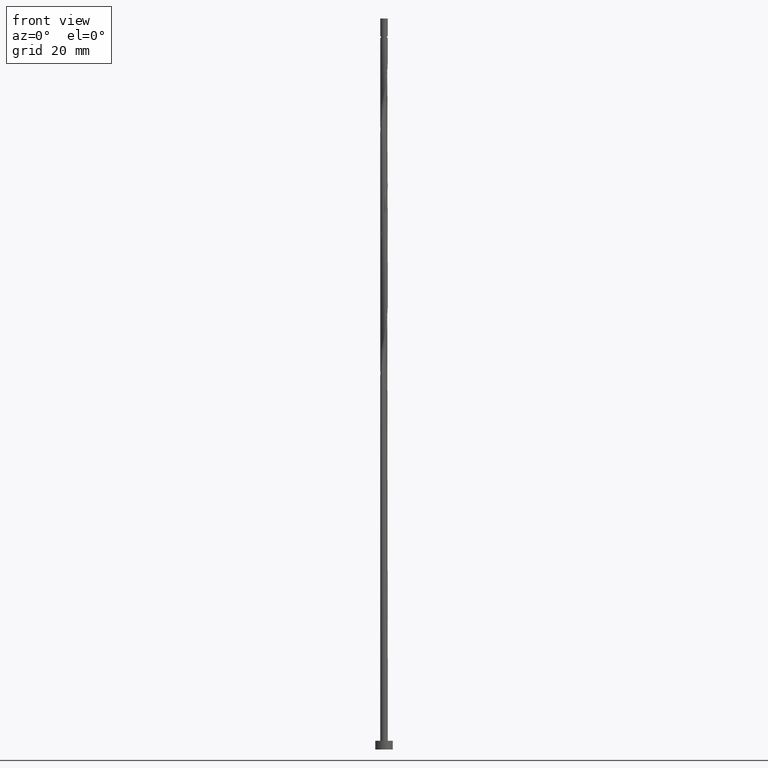
[diagram: clean part render]
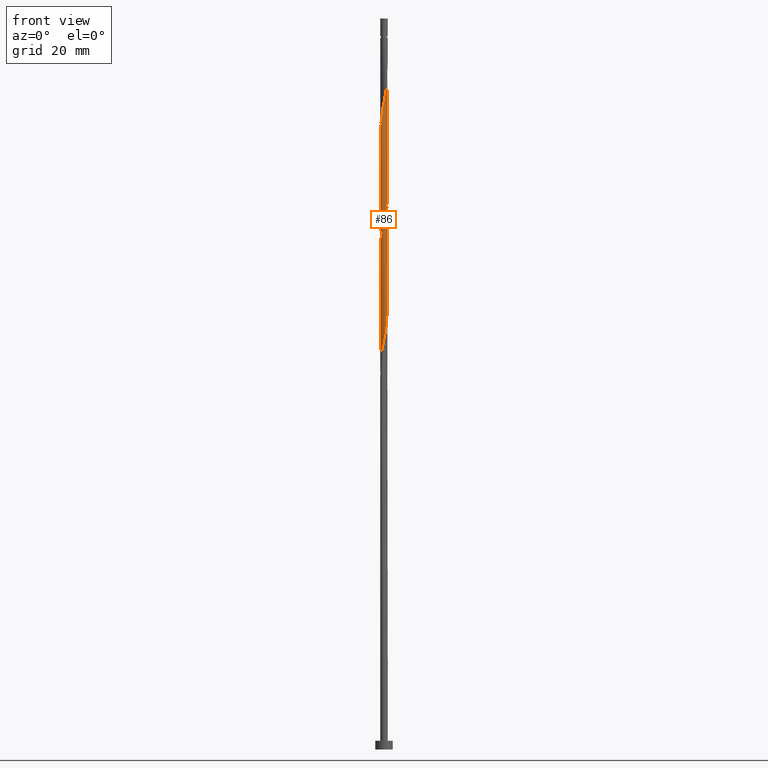
[diagram: same view with one face highlighted and labeled with its STEP entity id]
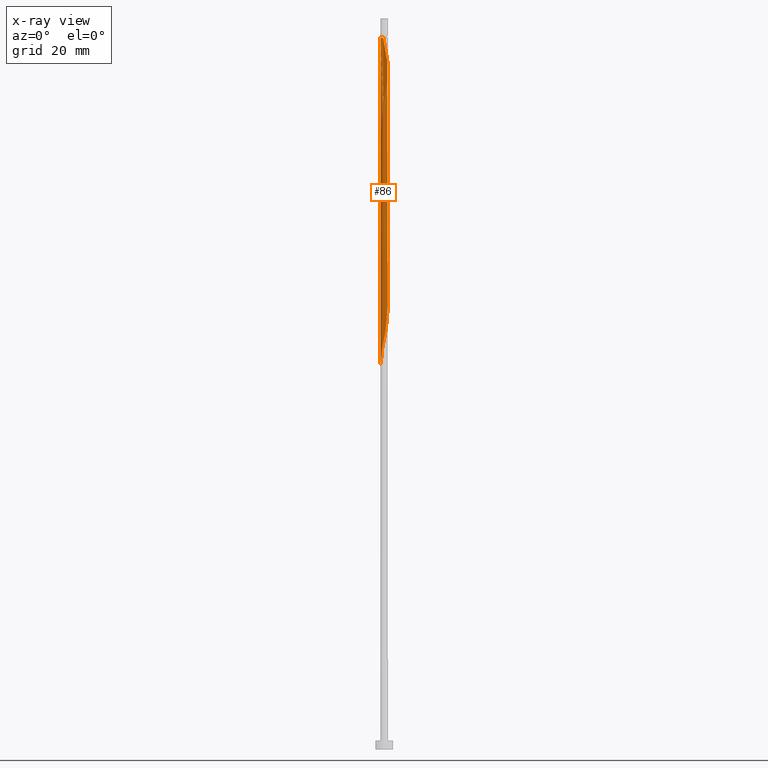
[diagram: x-ray of the same camera — body ghosted, the highlighted face saturated]
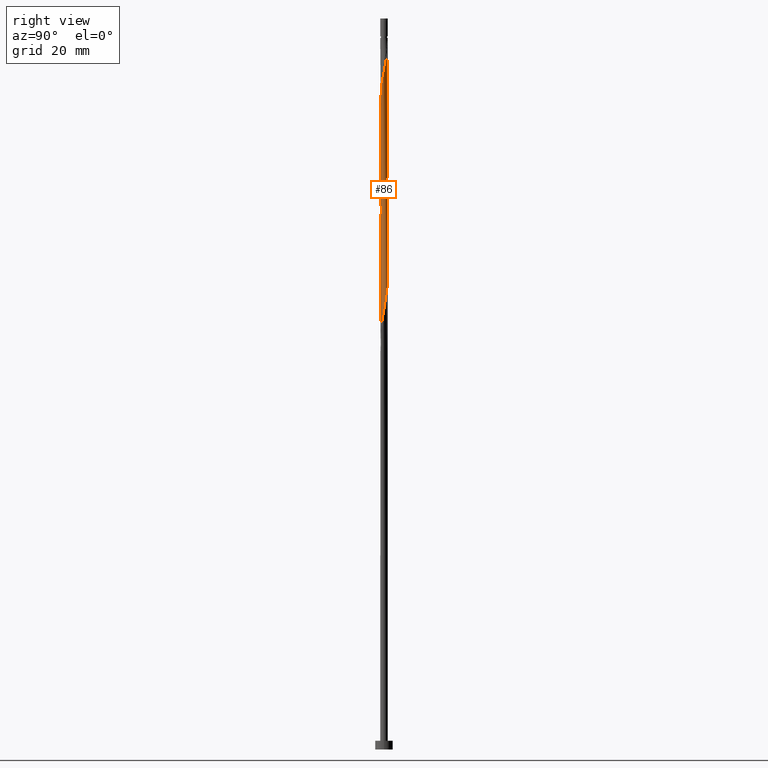
[diagram: same view with one face highlighted and labeled with its STEP entity id]
A machine part, front view. The second image highlights one B-rep face of the part: STEP entity #86.
The next image is the same camera in x-ray: the body ghosted, the highlighted face saturated — about 0% of this face is hidden behind the body in this view.
A second angle (right view) of the same face is appended — the face is thin or edge-on in the first view.
In plain terms, the highlighted cylindrical surface (bore or boss wall) has radius 0.65 mm, axis along (-0, -0, -1).
Its self-contained STEP definition (entity closure, byte-faithful):
#11 = CARTESIAN_POINT ( 'NONE',  ( 0.4094836098030308347, 0.5151910833598811745, 99.28845018092431474 ) ) ;
#21 = CARTESIAN_POINT ( 'NONE',  ( -0.2697741787551576897, -0.5913728878440247527, 109.1842835142576575 ) ) ;
#24 = CARTESIAN_POINT ( 'NONE',  ( 0.5913728878440248637, 0.2697741787551575787, 97.72595018092431474 ) ) ;
#29 = CARTESIAN_POINT ( 'NONE',  ( -0.07382621827687284310, -0.6457938444232309561, 110.2259501809243147 ) ) ;
#34 = CARTESIAN_POINT ( 'NONE',  ( 0.4790642326654539485, -0.4393147629896594908, 113.3509501809243289 ) ) ;
#44 = CARTESIAN_POINT ( 'NONE',  ( 0.6341009201601719436, 0.1761099148908769618, 97.20511684759098614 ) ) ;
#59 = CIRCLE ( 'NONE', #378, 0.6499999999999972466 ) ;
#62 = CARTESIAN_POINT ( 'NONE',  ( -0.02845747833712933966, 0.6574867686862904126, 121.1634501809243289 ) ) ;
#66 = DIRECTION ( 'NONE',  ( -1.000000000000000000, 0.000000000000000000, 0.000000000000000000 ) ) ;
#71 = CARTESIAN_POINT ( 'NONE',  ( -0.6500000000000010214, -7.871378961182869428E-16, 65.05741928906124372 ) ) ;
#78 = CARTESIAN_POINT ( 'NONE',  ( 0.6500000000000009104, -0.06532745799184966340, 95.97311471365341617 ) ) ;
#86 = ADVANCED_FACE ( 'NONE', ( #1252 ), #585, .T. ) ;
#88 = CARTESIAN_POINT ( 'NONE',  ( -0.6500000000000010214, -7.871378961182869428E-16, 65.05741928906124372 ) ) ;
#97 = CARTESIAN_POINT ( 'NONE',  ( 0.6165132313137109410, -0.2302392553105910011, 74.28845018092431474 ) ) ;
#105 = LINE ( 'NONE', #1314, #1393 ) ;
#106 = CARTESIAN_POINT ( 'NONE',  ( 0.07382621827687274596, -0.6457938444232315112, 70.64261684759100035 ) ) ;
#110 = CARTESIAN_POINT ( 'NONE',  ( 0.000000000000000000, 0.000000000000000000, 121.6842835142576575 ) ) ;
#115 = CARTESIAN_POINT ( 'NONE',  ( -0.4393147629896597683, 0.4790642326654542815, 103.9759501809243005 ) ) ;
#122 = CARTESIAN_POINT ( 'NONE',  ( -0.6457938444232315112, -0.07382621827687280147, 65.43428351425764333 ) ) ;
#124 = CARTESIAN_POINT ( 'NONE',  ( 0.2302392553105910289, 0.6165132313137109410, 100.3301168475909861 ) ) ;
#178 = CARTESIAN_POINT ( 'NONE',  ( 0.2697741787551576897, 0.5913728878440247527, 119.6009501809243147 ) ) ;
#180 = CARTESIAN_POINT ( 'NONE',  ( 0.07382621827687274596, -0.6457938444232315112, 91.47595018092431474 ) ) ;
#206 = CARTESIAN_POINT ( 'NONE',  ( -0.4790642326654542815, -0.4393147629896596573, 67.51761684759097193 ) ) ;
#218 = CARTESIAN_POINT ( 'NONE',  ( 0.02845747833713134153, 0.6574867686862910787, 80.53845018092430053 ) ) ;
#226 = CARTESIAN_POINT ( 'NONE',  ( -0.5658521573367959467, 0.3198614325568108208, 84.18428351425765754 ) ) ;
#237 = CARTESIAN_POINT ( 'NONE',  ( 0.6500000000000000222, 7.960204194457795477E-17, 125.0000000000000000 ) ) ;
#240 = CARTESIAN_POINT ( 'NONE',  ( -0.07382621827687282923, 0.6457938444232314001, 81.05928351425762912 ) ) ;
#278 = ORIENTED_EDGE ( 'NONE', *, *, #1043, .F. ) ;
#280 = CARTESIAN_POINT ( 'NONE',  ( 0.07382621827687295413, 0.6457938444232312891, 120.6426168475910004 ) ) ;
#286 = CARTESIAN_POINT ( 'NONE',  ( 0.5151910833598809525, 0.4094836098030303906, 118.0384501809243005 ) ) ;
#287 = CARTESIAN_POINT ( 'NONE',  ( 0.4393147629896596573, -0.4790642326654542815, 93.55928351425765754 ) ) ;
#302 = CARTESIAN_POINT ( 'NONE',  ( -0.5486448555278780059, -0.3634384426194383622, 87.83011684759097193 ) ) ;
#311 = CARTESIAN_POINT ( 'NONE',  ( 0.2302392553105910289, 0.6165132313137109410, 79.49678351425765754 ) ) ;
#325 = CARTESIAN_POINT ( 'NONE',  ( -0.6500000000000005773, 2.398896445312880911E-16, 105.3944810727873715 ) ) ;
#338 = CARTESIAN_POINT ( 'NONE',  ( 0.6574867686862910787, -0.02845747833713145256, 75.33011684759098614 ) ) ;
#340 = CARTESIAN_POINT ( 'NONE',  ( -0.1761099148908770451, 0.6341009201601719436, 102.4134501809243147 ) ) ;
#343 = LINE ( 'NONE', #1346, #1006 ) ;
#345 = CARTESIAN_POINT ( 'NONE',  ( -0.4094836098030307792, -0.5151910833598811745, 68.03845018092432895 ) ) ;
#346 = CARTESIAN_POINT ( 'NONE',  ( 0.02845747833713134153, 0.6574867686862910787, 101.3717835142576575 ) ) ;
#363 = EDGE_CURVE ( 'NONE', #807, #565, #967, .T. ) ;
#364 = CARTESIAN_POINT ( 'NONE',  ( 0.5486448555278780059, 0.3634384426194381956, 98.24678351425764333 ) ) ;
#370 = CARTESIAN_POINT ( 'NONE',  ( 0.6500000000000010214, 6.934310037232528088E-16, 96.30741928906125793 ) ) ;
#377 = CARTESIAN_POINT ( 'NONE',  ( -0.3634384426194381956, -0.5486448555278774508, 108.6634501809243289 ) ) ;
#378 = AXIS2_PLACEMENT_3D ( 'NONE', #110, #557, #917 ) ;
#379 = CARTESIAN_POINT ( 'NONE',  ( 0.6500000000000011324, 0.03703292934018066751, 96.49693037826850173 ) ) ;
#392 = ORIENTED_EDGE ( 'NONE', *, *, #865, .T. ) ;
#408 = CARTESIAN_POINT ( 'NONE',  ( 0.5913728878440247527, -0.2697741787551576897, 114.3926168475909861 ) ) ;
#410 = CARTESIAN_POINT ( 'NONE',  ( 0.1761099148908770173, 0.6341009201601714995, 120.1217835142576433 ) ) ;
#418 = CARTESIAN_POINT ( 'NONE',  ( 0.2697741787551576342, -0.5913728878440248637, 92.51761684759100035 ) ) ;
#429 = CARTESIAN_POINT ( 'NONE',  ( -0.3198614325568108763, -0.5658521573367959467, 68.55928351425764333 ) ) ;
#433 = DIRECTION ( 'NONE',  ( -0.000000000000000000, -0.000000000000000000, -1.000000000000000000 ) ) ;
#440 = CARTESIAN_POINT ( 'NONE',  ( -0.5151910833598807304, -0.4094836098030303906, 107.6217835142576433 ) ) ;
#451 = CARTESIAN_POINT ( 'NONE',  ( -0.2697741787551576342, 0.5913728878440248637, 82.10095018092432895 ) ) ;
#459 = CARTESIAN_POINT ( 'NONE',  ( 0.1293483668238612494, 0.6370000000000010099, 100.8509501809243432 ) ) ;
#478 = DIRECTION ( 'NONE',  ( -0.000000000000000000, -0.000000000000000000, -1.000000000000000000 ) ) ;
#485 = CARTESIAN_POINT ( 'NONE',  ( 0.02845747833713123398, -0.6574867686862906346, 110.7467835142576575 ) ) ;
#550 = EDGE_CURVE ( 'NONE', #565, #658, #571, .T. ) ;
#551 = CARTESIAN_POINT ( 'NONE',  ( -0.5658521573367958357, -0.3198614325568105432, 107.1009501809243005 ) ) ;
#557 = DIRECTION ( 'NONE',  ( -0.000000000000000000, -0.000000000000000000, -1.000000000000000000 ) ) ;
#558 = CARTESIAN_POINT ( 'NONE',  ( 0.6500000000000010214, 6.934310037232528088E-16, 96.30741928906125793 ) ) ;
#563 = CARTESIAN_POINT ( 'NONE',  ( -0.1293483668238605278, 0.6369999999999971241, 121.6842835142576433 ) ) ;
#565 = VERTEX_POINT ( 'NONE', #558 ) ;
#566 = CARTESIAN_POINT ( 'NONE',  ( -0.2302392553105909456, -0.6165132313137109410, 69.08011684759101456 ) ) ;
#571 =( BOUNDED_CURVE ( )  B_SPLINE_CURVE ( 2, ( #757, #78, #645, #972, #1178, #618, #287, #1186, #418, #751, #180, #1054, #1390, #858, #1070, #877, #1306, #302, #770, #1201, #1428, #1238, #576, #1003, #226, #806, #894, #1113, #451, #1104, #240, #218, #921, #311, #901, #693, #798, #1434, #1230, #779, #885, #338, #1244, #97, #1120, #704, #1446, #1341, #1093, #911, #106, #1332, #1020, #566, #429, #345, #206, #1209, #998, #1127, #122, #661, #88 ),
 .UNSPECIFIED., .F., .T. ) 
 B_SPLINE_CURVE_WITH_KNOTS ( ( 3, 2, 2, 2, 2, 2, 2, 2, 2, 2, 2, 2, 2, 2, 2, 2, 2, 2, 2, 2, 2, 2, 2, 2, 2, 2, 2, 2, 2, 2, 2, 3 ),
 ( 0.5545322023138552492, 0.5625000000000000000, 0.5749999999999999556, 0.5875000000000000222, 0.5999999999999999778, 0.6125000000000000444, 0.6250000000000000000, 0.6374999999999999556, 0.6500000000000000222, 0.6624999999999999778, 0.6750000000000000444, 0.6875000000000000000, 0.6999999999999999556, 0.7125000000000000222, 0.7249999999999999778, 0.7375000000000000444, 0.7500000000000000000, 0.7624999999999999556, 0.7750000000000000222, 0.7874999999999999778, 0.8000000000000000444, 0.8125000000000000000, 0.8249999999999999556, 0.8375000000000000222, 0.8499999999999999778, 0.8625000000000000444, 0.8750000000000000000, 0.8874999999999999556, 0.9000000000000000222, 0.9124999999999999778, 0.9250000000000000444, 0.9295322023138554712 ),
 .UNSPECIFIED. ) 
 CURVE ( )  GEOMETRIC_REPRESENTATION_ITEM ( )  RATIONAL_B_SPLINE_CURVE ( ( 0.9039174447099551646, 0.9019565955404845736, 0.9090909090909331525, 0.8978984914501488834, 0.9090909090909331525, 0.8978984914501488834, 0.9090909090909331525, 0.8978984914501488834, 0.9090909090909331525, 0.8978984914501488834, 0.9090909090909331525, 0.8978984914501488834, 0.9090909090909331525, 0.8978984914501488834, 0.9090909090909331525, 0.8978984914501488834, 0.9090909090909331525, 0.8978984914501488834, 0.9090909090909331525, 0.8978984914501488834, 0.9090909090909331525, 0.8978984914501488834, 0.9090909090909331525, 0.8978984914501488834, 0.9090909090909331525, 0.8978984914501488834, 0.9090909090909331525, 0.8978984914501488834, 0.9090909090909331525, 0.8978984914501488834, 0.9090909090909331525, 0.8978984914501488834, 0.9090909090909331525, 0.8978984914501488834, 0.9090909090909331525, 0.8978984914501488834, 0.9090909090909331525, 0.8978984914501488834, 0.9090909090909331525, 0.8978984914501488834, 0.9090909090909331525, 0.8978984914501488834, 0.9090909090909331525, 0.8978984914501488834, 0.9090909090909331525, 0.8978984914501488834, 0.9090909090909331525, 0.8978984914501488834, 0.9090909090909331525, 0.8978984914501488834, 0.9090909090909331525, 0.8978984914501488834, 0.9090909090909331525, 0.8978984914501488834, 0.9090909090909331525, 0.8978984914501488834, 0.9090909090909331525, 0.8978984914501488834, 0.9090909090909331525, 0.8978984914501488834, 0.9090909090909331525, 0.9050328050005971292, 0.9039174447099550536 ) ) 
 REPRESENTATION_ITEM ( '' )  );
#576 = CARTESIAN_POINT ( 'NONE',  ( -0.6370000000000010099, 0.1293483668238611106, 85.22595018092428631 ) ) ;
#579 = CARTESIAN_POINT ( 'NONE',  ( 0.3198614325568109318, 0.5658521573367957247, 99.80928351425762912 ) ) ;
#585 = CYLINDRICAL_SURFACE ( 'NONE', #1185, 0.6500000000000000222 ) ;
#597 = EDGE_CURVE ( 'NONE', #920, #819, #736, .T. ) ;
#603 = CARTESIAN_POINT ( 'NONE',  ( 0.3198614325568104877, -0.5658521573367958357, 112.3092835142576433 ) ) ;
#605 = CARTESIAN_POINT ( 'NONE',  ( 0.000000000000000000, 0.000000000000000000, 125.0000000000000000 ) ) ;
#618 = CARTESIAN_POINT ( 'NONE',  ( 0.5151910833598811745, -0.4094836098030307792, 94.08011684759097193 ) ) ;
#633 = CARTESIAN_POINT ( 'NONE',  ( -0.1293483668238605278, 0.6369999999999971241, 121.6842835142576433 ) ) ;
#645 = CARTESIAN_POINT ( 'NONE',  ( 0.6370000000000010099, -0.1293483668238611939, 95.64261684759095772 ) ) ;
#658 = VERTEX_POINT ( 'NONE', #71 ) ;
#661 = CARTESIAN_POINT ( 'NONE',  ( -0.6500000000000012434, -0.03703292934017893973, 65.24693037826850173 ) ) ;
#675 = CARTESIAN_POINT ( 'NONE',  ( -0.6165132313137104969, -0.2302392553105907791, 106.5801168475909861 ) ) ;
#693 = CARTESIAN_POINT ( 'NONE',  ( 0.4094836098030308347, 0.5151910833598811745, 78.45511684759098614 ) ) ;
#704 = CARTESIAN_POINT ( 'NONE',  ( 0.5151910833598811745, -0.4094836098030307792, 73.24678351425764333 ) ) ;
#710 = CARTESIAN_POINT ( 'NONE',  ( 0.6500000000000000222, 7.960204194457795477E-17, 121.6842835142576575 ) ) ;
#727 = CARTESIAN_POINT ( 'NONE',  ( 0.2302392553105907236, -0.6165132313137104969, 111.7884501809243147 ) ) ;
#736 =( BOUNDED_CURVE ( )  B_SPLINE_CURVE ( 2, ( #325, #788, #1220, #675, #551, #440, #1263, #377, #21, #1037, #29, #485, #832, #727, #603, #1041, #34, #1376, #408, #1061, #755, #768, #848, #1183, #971, #286, #869, #1305, #178, #410, #280, #62, #633 ),
 .UNSPECIFIED., .F., .T. ) 
 B_SPLINE_CURVE_WITH_KNOTS ( ( 3, 2, 2, 2, 2, 2, 2, 2, 2, 2, 2, 2, 2, 2, 2, 2, 3 ),
 ( 0.5545322023138551382, 0.5625000000000000000, 0.5749999999999999556, 0.5875000000000000222, 0.5999999999999998668, 0.6124999999999999334, 0.6249999999999998890, 0.6374999999999998446, 0.6499999999999999112, 0.6624999999999998668, 0.6749999999999999334, 0.6874999999999998890, 0.6999999999999997335, 0.7124999999999998002, 0.7249999999999997558, 0.7374999999999998224, 0.7499999999999997780 ),
 .UNSPECIFIED. ) 
 CURVE ( )  GEOMETRIC_REPRESENTATION_ITEM ( )  RATIONAL_B_SPLINE_CURVE ( ( 0.9039174447099528331, 0.9019565955404820201, 0.9090909090909307100, 0.8978984914501465520, 0.9090909090909307100, 0.8978984914501465520, 0.9090909090909307100, 0.8978984914501465520, 0.9090909090909307100, 0.8978984914501465520, 0.9090909090909307100, 0.8978984914501465520, 0.9090909090909307100, 0.8978984914501465520, 0.9090909090909307100, 0.8978984914501465520, 0.9090909090909307100, 0.8978984914501465520, 0.9090909090909307100, 0.8978984914501465520, 0.9090909090909307100, 0.8978984914501465520, 0.9090909090909307100, 0.8978984914501465520, 0.9090909090909307100, 0.8978984914501465520, 0.9090909090909307100, 0.8978984914501465520, 0.9090909090909307100, 0.8978984914501465520, 0.9090909090909307100, 0.8978984914501466630, 0.9090909090909305990 ) ) 
 REPRESENTATION_ITEM ( '' )  );
#749 = ORIENTED_EDGE ( 'NONE', *, *, #550, .F. ) ;
#751 = CARTESIAN_POINT ( 'NONE',  ( 0.1761099148908770173, -0.6341009201601719436, 91.99678351425765754 ) ) ;
#755 = CARTESIAN_POINT ( 'NONE',  ( 0.6457938444232309561, -0.07382621827687287086, 115.4342835142576433 ) ) ;
#757 = CARTESIAN_POINT ( 'NONE',  ( 0.6500000000000010214, 6.934310037232528088E-16, 96.30741928906125793 ) ) ;
#768 = CARTESIAN_POINT ( 'NONE',  ( 0.6574867686862906346, 0.02845747833713119929, 115.9551168475910004 ) ) ;
#770 = CARTESIAN_POINT ( 'NONE',  ( -0.5913728878440248637, -0.2697741787551576342, 87.30928351425762912 ) ) ;
#779 = CARTESIAN_POINT ( 'NONE',  ( 0.6341009201601719436, 0.1761099148908769618, 76.37178351425761491 ) ) ;
#785 = ORIENTED_EDGE ( 'NONE', *, *, #597, .F. ) ;
#788 = CARTESIAN_POINT ( 'NONE',  ( -0.6500000000000007994, -0.06532745799184860869, 105.7287856481952275 ) ) ;
#798 = CARTESIAN_POINT ( 'NONE',  ( 0.4790642326654543925, 0.4393147629896596573, 77.93428351425762912 ) ) ;
#806 = CARTESIAN_POINT ( 'NONE',  ( -0.5151910833598811745, 0.4094836098030307237, 83.66345018092434316 ) ) ;
#807 = VERTEX_POINT ( 'NONE', #980 ) ;
#819 = VERTEX_POINT ( 'NONE', #563 ) ;
#832 = CARTESIAN_POINT ( 'NONE',  ( 0.1293483668238609718, -0.6370000000000007878, 111.2676168475910146 ) ) ;
#848 = CARTESIAN_POINT ( 'NONE',  ( 0.6370000000000007878, 0.1293483668238609441, 116.4759501809243289 ) ) ;
#849 = EDGE_CURVE ( 'NONE', #1440, #807, #105, .T. ) ;
#858 = CARTESIAN_POINT ( 'NONE',  ( -0.2302392553105909456, -0.6165132313137109410, 89.91345018092432895 ) ) ;
#865 = EDGE_CURVE ( 'NONE', #920, #658, #343, .T. ) ;
#869 = CARTESIAN_POINT ( 'NONE',  ( 0.4393147629896594908, 0.4790642326654539485, 118.5592835142576718 ) ) ;
#877 = CARTESIAN_POINT ( 'NONE',  ( -0.4094836098030307792, -0.5151910833598811745, 88.87178351425762912 ) ) ;
#884 = EDGE_CURVE ( 'NONE', #1440, #819, #59, .T. ) ;
#885 = CARTESIAN_POINT ( 'NONE',  ( 0.6457938444232315112, 0.07382621827687273208, 75.85095018092430053 ) ) ;
#893 = CARTESIAN_POINT ( 'NONE',  ( -0.6500000000000006883, 2.398896445312880911E-16, 105.3944810727873715 ) ) ;
#894 = CARTESIAN_POINT ( 'NONE',  ( -0.4393147629896597683, 0.4790642326654542815, 83.14261684759098614 ) ) ;
#897 = CARTESIAN_POINT ( 'NONE',  ( -0.6500000000000014655, 0.06532745799184760949, 106.3897813803200876 ) ) ;
#900 = DIRECTION ( 'NONE',  ( -0.000000000000000000, -0.000000000000000000, -1.000000000000000000 ) ) ;
#901 = CARTESIAN_POINT ( 'NONE',  ( 0.3198614325568109318, 0.5658521573367957247, 78.97595018092430053 ) ) ;
#903 = CARTESIAN_POINT ( 'NONE',  ( -0.3634384426194384732, 0.5486448555278780059, 103.4551168475910004 ) ) ;
#904 = VECTOR ( 'NONE', #932, 1000.000000000000000 ) ;
#911 = CARTESIAN_POINT ( 'NONE',  ( 0.1761099148908770173, -0.6341009201601719436, 71.16345018092432895 ) ) ;
#912 = CARTESIAN_POINT ( 'NONE',  ( -0.07382621827687282923, 0.6457938444232314001, 101.8926168475909861 ) ) ;
#917 = DIRECTION ( 'NONE',  ( -1.000000000000000000, 0.000000000000000000, 0.000000000000000000 ) ) ;
#920 = VERTEX_POINT ( 'NONE', #893 ) ;
#921 = CARTESIAN_POINT ( 'NONE',  ( 0.1293483668238612494, 0.6370000000000010099, 80.01761684759101456 ) ) ;
#928 = CARTESIAN_POINT ( 'NONE',  ( 0.4790642326654543925, 0.4393147629896596573, 98.76761684759095772 ) ) ;
#932 = DIRECTION ( 'NONE',  ( -0.000000000000000000, -0.000000000000000000, -1.000000000000000000 ) ) ;
#933 = ORIENTED_EDGE ( 'NONE', *, *, #884, .T. ) ;
#937 = LINE ( 'NONE', #237, #904 ) ;
#956 = ORIENTED_EDGE ( 'NONE', *, *, #849, .F. ) ;
#967 =( BOUNDED_CURVE ( )  B_SPLINE_CURVE ( 2, ( #1130, #897, #1005, #1342, #1023, #1222, #115, #903, #992, #340, #912, #346, #459, #124, #579, #11, #928, #364, #24, #44, #1251, #379, #370 ),
 .UNSPECIFIED., .F., .T. ) 
 B_SPLINE_CURVE_WITH_KNOTS ( ( 3, 2, 2, 2, 2, 2, 2, 2, 2, 2, 2, 3 ),
 ( 0.4295322023138549716, 0.4375000000000000000, 0.4500000000000000111, 0.4625000000000000222, 0.4749999999999999778, 0.4874999999999999889, 0.5000000000000000000, 0.5124999999999999556, 0.5250000000000000222, 0.5374999999999999778, 0.5500000000000000444, 0.5545322023138552492 ),
 .UNSPECIFIED. ) 
 CURVE ( )  GEOMETRIC_REPRESENTATION_ITEM ( )  RATIONAL_B_SPLINE_CURVE ( ( 0.9039174447099553866, 0.9019565955404843516, 0.9090909090909331525, 0.8978984914501488834, 0.9090909090909331525, 0.8978984914501488834, 0.9090909090909331525, 0.8978984914501488834, 0.9090909090909331525, 0.8978984914501488834, 0.9090909090909331525, 0.8978984914501488834, 0.9090909090909331525, 0.8978984914501488834, 0.9090909090909331525, 0.8978984914501488834, 0.9090909090909331525, 0.8978984914501488834, 0.9090909090909331525, 0.8978984914501488834, 0.9090909090909331525, 0.9050328050005973513, 0.9039174447099551646 ) ) 
 REPRESENTATION_ITEM ( '' )  );
#971 = CARTESIAN_POINT ( 'NONE',  ( 0.5658521573367958357, 0.3198614325568104877, 117.5176168475909861 ) ) ;
#972 = CARTESIAN_POINT ( 'NONE',  ( 0.6165132313137109410, -0.2302392553105910011, 95.12178351425765754 ) ) ;
#980 = CARTESIAN_POINT ( 'NONE',  ( -0.6500000000000011324, -2.099034389648765312E-16, 106.7240859557279293 ) ) ;
#992 = CARTESIAN_POINT ( 'NONE',  ( -0.2697741787551576342, 0.5913728878440248637, 102.9342835142576575 ) ) ;
#998 = CARTESIAN_POINT ( 'NONE',  ( -0.5913728878440248637, -0.2697741787551576342, 66.47595018092430053 ) ) ;
#1003 = CARTESIAN_POINT ( 'NONE',  ( -0.6165132313137109410, 0.2302392553105909179, 84.70511684759100035 ) ) ;
#1005 = CARTESIAN_POINT ( 'NONE',  ( -0.6370000000000010099, 0.1293483668238611106, 106.0592835142576575 ) ) ;
#1006 = VECTOR ( 'NONE', #900, 1000.000000000000000 ) ;
#1019 = ORIENTED_EDGE ( 'NONE', *, *, #1043, .T. ) ;
#1020 = CARTESIAN_POINT ( 'NONE',  ( -0.1293483668238611661, -0.6370000000000010099, 69.60095018092432895 ) ) ;
#1023 = CARTESIAN_POINT ( 'NONE',  ( -0.5658521573367959467, 0.3198614325568108208, 105.0176168475909719 ) ) ;
#1037 = CARTESIAN_POINT ( 'NONE',  ( -0.1761099148908769618, -0.6341009201601714995, 109.7051168475909577 ) ) ;
#1041 = CARTESIAN_POINT ( 'NONE',  ( 0.4094836098030303906, -0.5151910833598808415, 112.8301168475909861 ) ) ;
#1043 = EDGE_CURVE ( 'NONE', #1239, #565, #937, .T. ) ;
#1054 = CARTESIAN_POINT ( 'NONE',  ( -0.02845747833713141786, -0.6574867686862910787, 90.95511684759100035 ) ) ;
#1061 = CARTESIAN_POINT ( 'NONE',  ( 0.6341009201601714995, -0.1761099148908769618, 114.9134501809243005 ) ) ;
#1070 = CARTESIAN_POINT ( 'NONE',  ( -0.3198614325568108763, -0.5658521573367959467, 89.39261684759094351 ) ) ;
#1093 = CARTESIAN_POINT ( 'NONE',  ( 0.2697741787551576342, -0.5913728878440248637, 71.68428351425765754 ) ) ;
#1104 = CARTESIAN_POINT ( 'NONE',  ( -0.1761099148908770451, 0.6341009201601719436, 81.58011684759097193 ) ) ;
#1113 = CARTESIAN_POINT ( 'NONE',  ( -0.3634384426194384732, 0.5486448555278780059, 82.62178351425764333 ) ) ;
#1120 = CARTESIAN_POINT ( 'NONE',  ( 0.5658521573367959467, -0.3198614325568109318, 73.76761684759097193 ) ) ;
#1127 = CARTESIAN_POINT ( 'NONE',  ( -0.6341009201601719436, -0.1761099148908770451, 65.95511684759098614 ) ) ;
#1130 = CARTESIAN_POINT ( 'NONE',  ( -0.6500000000000011324, -2.099034389648765312E-16, 106.7240859557279435 ) ) ;
#1178 = CARTESIAN_POINT ( 'NONE',  ( 0.5658521573367959467, -0.3198614325568109318, 94.60095018092428631 ) ) ;
#1183 = CARTESIAN_POINT ( 'NONE',  ( 0.6165132313137104969, 0.2302392553105906681, 116.9967835142576433 ) ) ;
#1185 = AXIS2_PLACEMENT_3D ( 'NONE', #605, #478, #66 ) ;
#1186 = CARTESIAN_POINT ( 'NONE',  ( 0.3634384426194381956, -0.5486448555278780059, 93.03845018092431474 ) ) ;
#1201 = CARTESIAN_POINT ( 'NONE',  ( -0.6341009201601719436, -0.1761099148908770451, 86.78845018092431474 ) ) ;
#1209 = CARTESIAN_POINT ( 'NONE',  ( -0.5486448555278780059, -0.3634384426194383622, 66.99678351425767175 ) ) ;
#1220 = CARTESIAN_POINT ( 'NONE',  ( -0.6370000000000007878, -0.1293483668238610274, 106.0592835142576433 ) ) ;
#1222 = CARTESIAN_POINT ( 'NONE',  ( -0.5151910833598811745, 0.4094836098030307237, 104.4967835142576433 ) ) ;
#1223 = ORIENTED_EDGE ( 'NONE', *, *, #363, .F. ) ;
#1230 = CARTESIAN_POINT ( 'NONE',  ( 0.5913728878440248637, 0.2697741787551575787, 76.89261684759097193 ) ) ;
#1238 = CARTESIAN_POINT ( 'NONE',  ( -0.6574867686862910787, 0.02845747833713136235, 85.74678351425764333 ) ) ;
#1239 = VERTEX_POINT ( 'NONE', #710 ) ;
#1244 = CARTESIAN_POINT ( 'NONE',  ( 0.6370000000000010099, -0.1293483668238611939, 74.80928351425765754 ) ) ;
#1251 = CARTESIAN_POINT ( 'NONE',  ( 0.6457938444232315112, 0.07382621827687273208, 96.68428351425762912 ) ) ;
#1252 = FACE_OUTER_BOUND ( 'NONE', #1367, .T. ) ;
#1263 = CARTESIAN_POINT ( 'NONE',  ( -0.4393147629896594908, -0.4790642326654539485, 108.1426168475910004 ) ) ;
#1297 = CARTESIAN_POINT ( 'NONE',  ( -0.6499999999999972466, 0.000000000000000000, 121.6842835142576575 ) ) ;
#1305 = CARTESIAN_POINT ( 'NONE',  ( 0.3634384426194381956, 0.5486448555278773398, 119.0801168475909719 ) ) ;
#1306 = CARTESIAN_POINT ( 'NONE',  ( -0.4790642326654542815, -0.4393147629896596573, 88.35095018092430053 ) ) ;
#1314 = CARTESIAN_POINT ( 'NONE',  ( -0.6500000000000000222, 0.000000000000000000, 125.0000000000000000 ) ) ;
#1332 = CARTESIAN_POINT ( 'NONE',  ( -0.02845747833713141786, -0.6574867686862910787, 70.12178351425765754 ) ) ;
#1341 = CARTESIAN_POINT ( 'NONE',  ( 0.3634384426194381956, -0.5486448555278780059, 72.20511684759097193 ) ) ;
#1342 = CARTESIAN_POINT ( 'NONE',  ( -0.6165132313137109410, 0.2302392553105909179, 105.5384501809243289 ) ) ;
#1346 = CARTESIAN_POINT ( 'NONE',  ( -0.6500000000000000222, 0.000000000000000000, 125.0000000000000000 ) ) ;
#1367 = EDGE_LOOP ( 'NONE', ( #956, #933, #785, #392, #749, #278, #1019, #1223 ) ) ;
#1376 = CARTESIAN_POINT ( 'NONE',  ( 0.5486448555278774508, -0.3634384426194381956, 113.8717835142576575 ) ) ;
#1390 = CARTESIAN_POINT ( 'NONE',  ( -0.1293483668238611661, -0.6370000000000010099, 90.43428351425765754 ) ) ;
#1393 = VECTOR ( 'NONE', #433, 1000.000000000000000 ) ;
#1428 = CARTESIAN_POINT ( 'NONE',  ( -0.6457938444232315112, -0.07382621827687280147, 86.26761684759097193 ) ) ;
#1434 = CARTESIAN_POINT ( 'NONE',  ( 0.5486448555278780059, 0.3634384426194381956, 77.41345018092434316 ) ) ;
#1440 = VERTEX_POINT ( 'NONE', #1297 ) ;
#1446 = CARTESIAN_POINT ( 'NONE',  ( 0.4393147629896596573, -0.4790642326654542815, 72.72595018092431474 ) ) ;